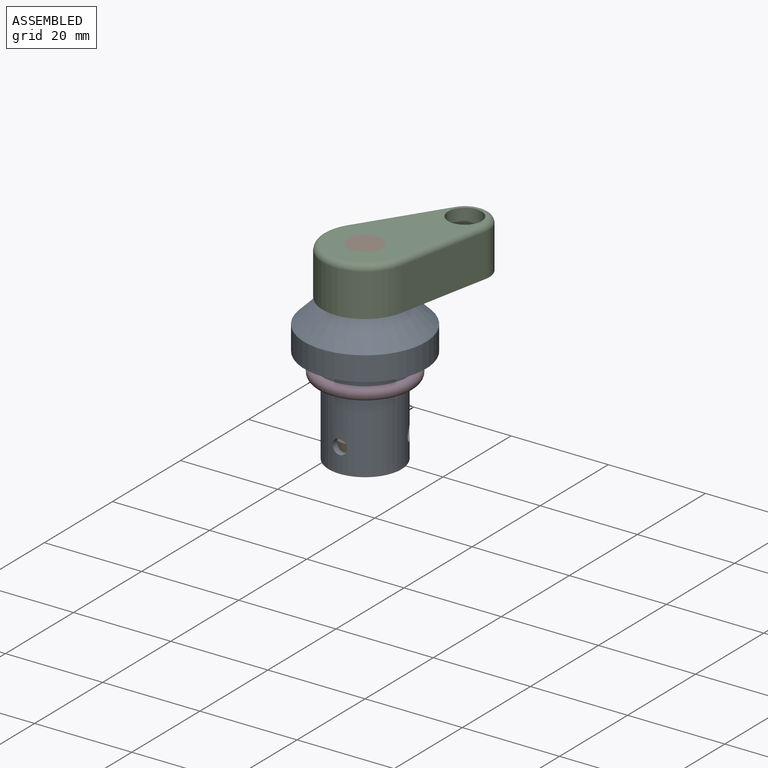
[diagram: assembled view]
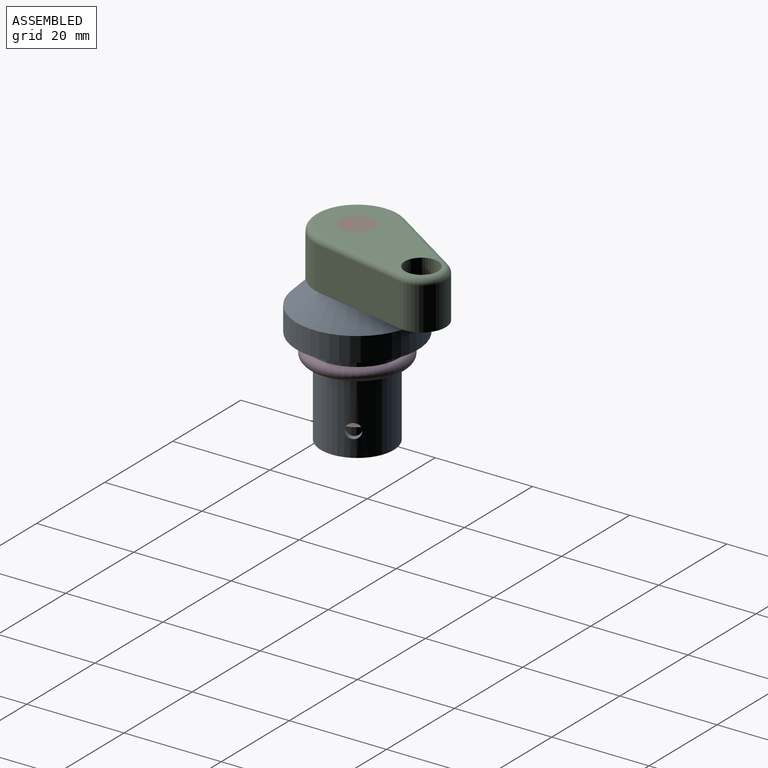
[diagram: assembled view, second angle]
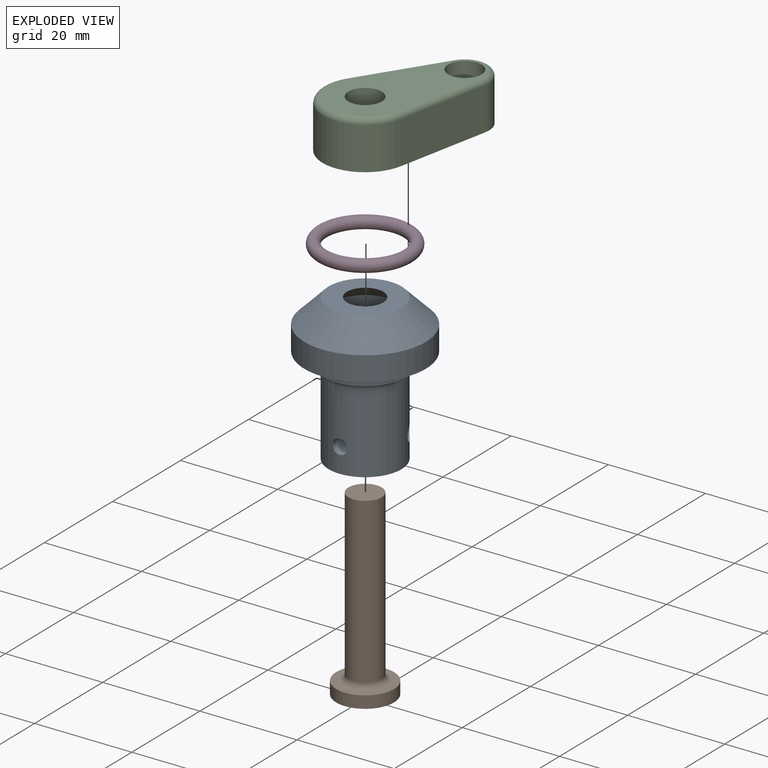
[diagram: exploded view]
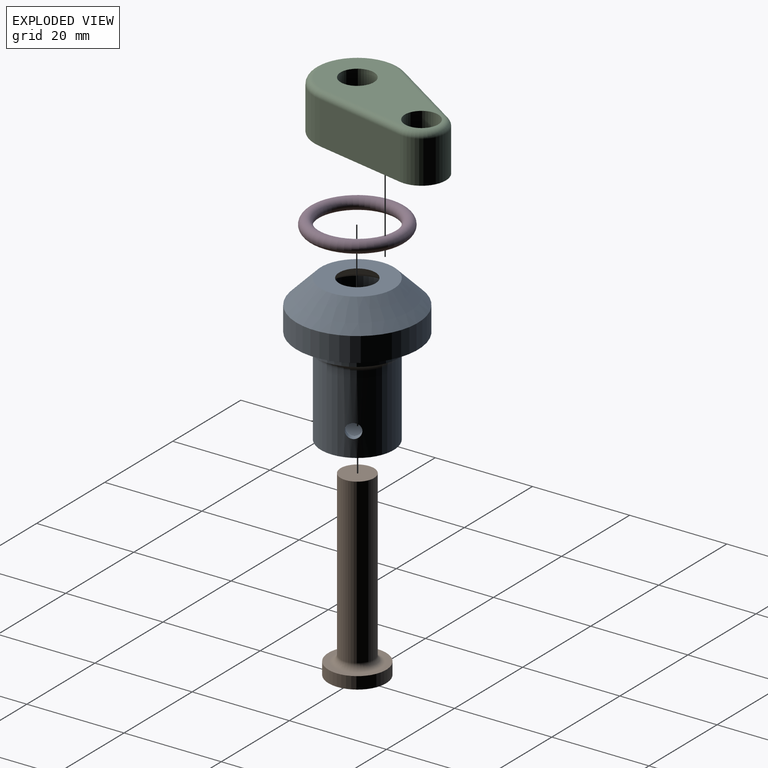
[diagram: exploded view, second angle]
ASSEMBLY  parts=4 mates=3
PART A: 15 faces, bbox 25x25x30 mm
  f0: cylinder r=7.5mm len=16.25mm, axis (0,0,-1), area 744.4mm2, adj f2,f10,f11,f12,f13
  f1: cylinder r=6.25mm len=25mm, axis (0,0,-1), area 960.4mm2, adj f8,f9,f10,f11,f12
  f2: plane 15x15mm, normal (0,0,-1), area 176.7mm2, adj f0
  f3: cylinder r=8.75mm len=17.5mm, axis (0,0,-1), area 68.7mm2, adj f13,f14
  f4: plane 25x25mm, normal (0,0,-1), area 176.7mm2, adj f5,f14
  f5: cylinder r=12.5mm len=25mm, axis (0,0,-1), area 392.7mm2, adj f4,f6
  f6: cone r=7.5mm half-angle=45deg, axis (0,0,-1), area 444.3mm2, adj f5,f7
  f7: plane 15x15mm, normal (0,0,1), area 132.5mm2, adj f6,f8
  f8: cone r=3.75mm half-angle=45deg, axis (0,0,-1), area 111.1mm2, adj f1,f7
  f9: plane 12.5x12.5mm, normal (0,0,1), area 122.7mm2, adj f1
  f10: cylinder r=1.5mm len=3mm, axis (0,1,0), area 11.9mm2, adj f0,f1
  f11: cylinder r=1.5mm len=3.31mm, axis (0.87,-0.5,0), area 11.9mm2, adj f0,f1
  f12: cylinder r=1.5mm len=3.31mm, axis (-0.87,-0.5,0), area 11.9mm2, adj f0,f1
  f13: torus R=8.75mm, axis (0,0,1), area 98.1mm2, adj f0,f3
  f14: torus R=10mm, axis (0,0,1), area 113.6mm2, adj f3,f4
PART B: 6 faces, bbox 11.9x11.9x37.5 mm
  f0: plane 11.88x11.88mm, normal (0,0,-1), area 110.8mm2, adj f1
  f1: cylinder r=5.94mm len=11.88mm, axis (0,0,-1), area 93.3mm2, adj f0,f2
  f2: plane 11.88x11.88mm, normal (0,0,1), area 41.7mm2, adj f1,f5
  f3: cylinder r=3.44mm len=33.75mm, axis (0,0,-1), area 728.9mm2, adj f4,f5
  f4: plane 6.88x6.88mm, normal (0,0,1), area 37.1mm2, adj f3
  f5: torus R=4.69mm, axis (0,0,-1), area 48mm2, adj f2,f3
PART C: 12 faces, bbox 34.9x18.9x10 mm
  f0: plane 33.75x17.5mm, normal (0,0,-1), area 365.1mm2, adj f1,f2,f3,f4,f5,f6
  f1: cylinder r=8.75mm len=17.5mm, axis (0,0,1), area 269.4mm2, adj f0,f2,f4,f8
  f2: plane 19.3x8.75mm, normal (-0.19,0.98,0), area 171.9mm2, adj f0,f1,f3,f9
  f3: cylinder r=5mm len=9.82mm, axis (0,0,1), area 120.9mm2, adj f0,f2,f4,f11
  f4: plane 19.3x8.75mm, normal (-0.19,-0.98,0), area 171.9mm2, adj f0,f1,f3,f10
  f5: cylinder r=3.44mm len=10mm, axis (0,0,1), area 216mm2, adj f0,f7
  f6: cylinder r=3.44mm len=10mm, axis (0,0,1), area 216mm2, adj f0,f7
  f7: plane 31.25x15mm, normal (0,0,1), area 265.2mm2, adj f5,f6,f8,f9,f10,f11
  f8: torus R=7.5mm, axis (0,0,1), area 57.3mm2, adj f1,f7,f9,f10
  f9: cylinder r=1.25mm len=19.53mm, axis (-0.98,-0.19,0), area 38.6mm2, adj f2,f7,f8,f11
  f10: cylinder r=1.25mm len=19.53mm, axis (0.98,-0.19,0), area 38.6mm2, adj f4,f7,f8,f11
  f11: torus R=3.75mm, axis (0,0,1), area 24.7mm2, adj f3,f7,f9,f10
PART D: 1 faces, bbox 21.6x21.6x2.5 mm
  f0: torus R=8.75mm, axis (0,0,1), area 431.8mm2
PLACE A rot(axis=(0,0,1),0deg) t=(0,0,0)mm fixed
PLACE B rot(axis=(0,0,-1),112.2deg) t=(0,0,0)mm
PLACE C rot(axis=(0,0,-1),112.2deg) t=(0,0,0)mm
PLACE D rot(axis=(0,0,1),0deg) t=(0,0,16.25)mm
MATE fastened D.f0 <-> A.f0  axis (0,0,1) through (0,0,16.25)mm
MATE fastened B.f1 <-> C.f1  axis (0,0,1) through (0,0,40)mm
MATE cylindrical B.f1 <-> A.f0  axis (0,0,-1) through (0,0,2.5)mm
